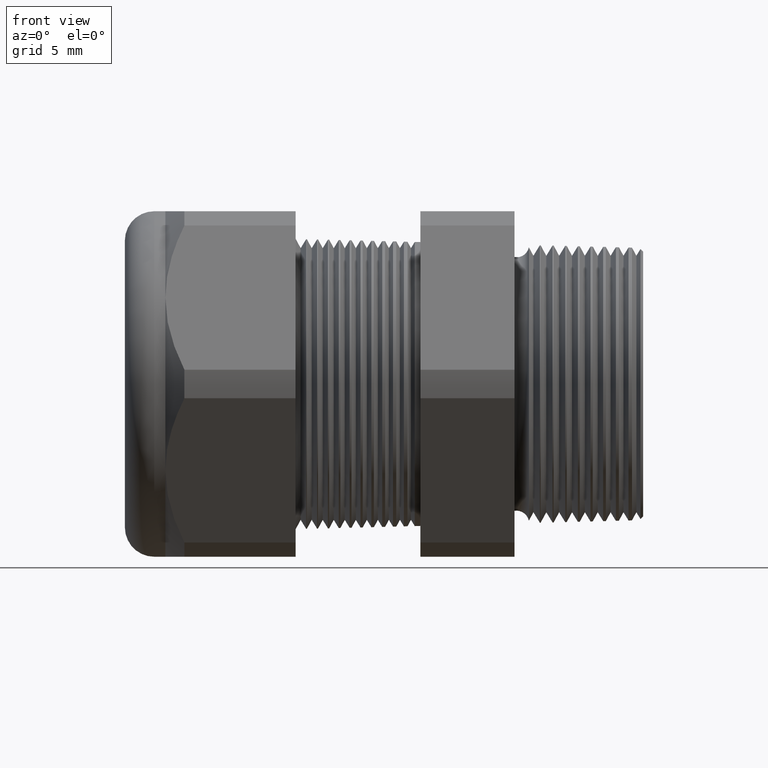
[diagram: clean part render]
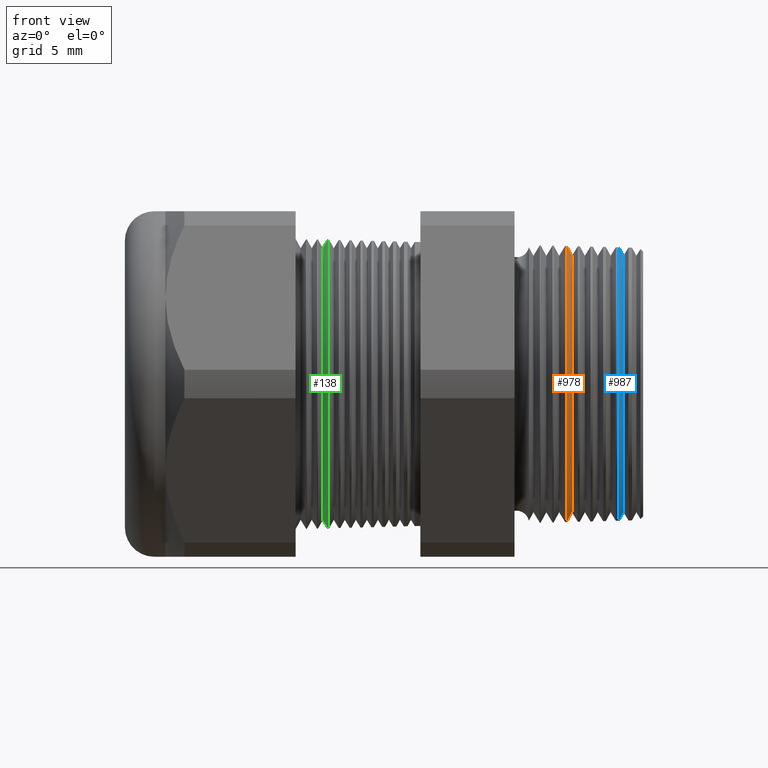
[diagram: same view with three faces highlighted in distinct colors, each labeled with its STEP entity id]
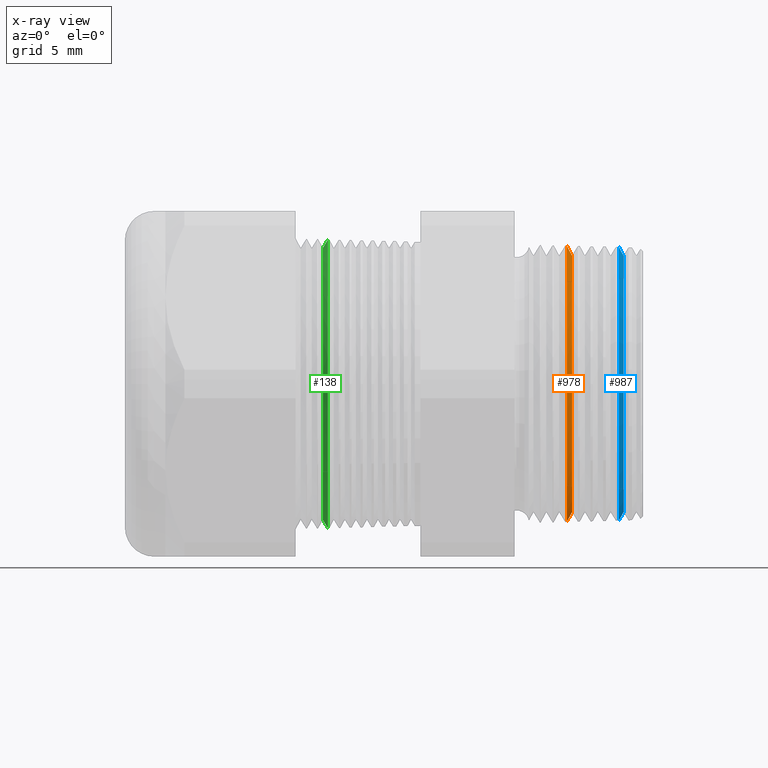
[diagram: x-ray of the same camera — body ghosted, the three highlighted faces saturated]
A machine part, front view with three faces highlighted in distinct colors.
The next image is the same camera in x-ray (body ghosted, the three faces saturated) — at least one of them is partly hidden behind the body in this view.
Their STEP definitions:

[orange] entity #978 — the highlighted conical surface has half-angle 61.5 deg.
#757 = EDGE_CURVE ( 'NONE', #768, #758, #2454, .T. ) ;
#758 = VERTEX_POINT ( 'NONE', #2450 ) ;
#768 = VERTEX_POINT ( 'NONE', #2500 ) ;
#769 = EDGE_CURVE ( 'NONE', #825, #817, #2499, .T. ) ;
#817 = VERTEX_POINT ( 'NONE', #2584 ) ;
#825 = VERTEX_POINT ( 'NONE', #2632 ) ;
#958 = ORIENTED_EDGE ( 'NONE', *, *, #769, .T. ) ;
#959 = ORIENTED_EDGE ( 'NONE', *, *, #4502, .T. ) ;
#978 = ADVANCED_FACE ( 'NONE', ( #2817 ), #2816, .T. ) ;
#979 = EDGE_LOOP ( 'NONE', ( #980, #981, #958, #959 ) ) ;
#980 = ORIENTED_EDGE ( 'NONE', *, *, #757, .F. ) ;
#981 = ORIENTED_EDGE ( 'NONE', *, *, #982, .F. ) ;
#982 = EDGE_CURVE ( 'NONE', #825, #768, #2811, .T. ) ;
#2450 = CARTESIAN_POINT ( 'NONE',  ( -0.1679808000774191100, 4.601514061233293400E-017, -0.3756891326761130400 ) ) ;
#2451 = DIRECTION ( 'NONE',  ( -0.4771587602596179000, 1.076240564057388100E-016, -0.8788171126619600500 ) ) ;
#2452 = VECTOR ( 'NONE', #2451, 39.37007874015748900 ) ;
#2453 = CARTESIAN_POINT ( 'NONE',  ( -0.1699999999999999600, 4.646408372336645900E-017, -0.3794080363066033600 ) ) ;
#2454 = LINE ( 'NONE', #2453, #2452 ) ;
#2496 = DIRECTION ( 'NONE',  ( -0.4771587602596179000, 0.0000000000000000000, 0.8788171126619600500 ) ) ;
#2497 = VECTOR ( 'NONE', #2496, 39.37007874015748900 ) ;
#2498 = CARTESIAN_POINT ( 'NONE',  ( -0.1699999999999999600, 0.0000000000000000000, 0.3794080363066033600 ) ) ;
#2499 = LINE ( 'NONE', #2498, #2497 ) ;
#2500 = CARTESIAN_POINT ( 'NONE',  ( -0.1534707356790752100, 4.437226321388159300E-017, -0.3489649185127733400 ) ) ;
#2584 = CARTESIAN_POINT ( 'NONE',  ( -0.1679808000774191100, 0.0000000000000000000, 0.3756891326761130400 ) ) ;
#2632 = CARTESIAN_POINT ( 'NONE',  ( -0.1534707356790752100, 0.0000000000000000000, 0.3489649185127733400 ) ) ;
#2808 = DIRECTION ( 'NONE',  ( 0.0000000000000000000, 0.0000000000000000000, -1.000000000000000000 ) ) ;
#2809 = DIRECTION ( 'NONE',  ( 1.000000000000000000, 0.0000000000000000000, 0.0000000000000000000 ) ) ;
#2810 = AXIS2_PLACEMENT_3D ( 'NONE', #2815, #2809, #2808 ) ;
#2811 = CIRCLE ( 'NONE', #2810, 0.3489649185127733400 ) ;
#2812 = DIRECTION ( 'NONE',  ( 0.0000000000000000000, 0.0000000000000000000, 1.000000000000000000 ) ) ;
#2813 = DIRECTION ( 'NONE',  ( -1.000000000000000000, 0.0000000000000000000, 0.0000000000000000000 ) ) ;
#2814 = AXIS2_PLACEMENT_3D ( 'NONE', #2821, #2813, #2812 ) ;
#2815 = CARTESIAN_POINT ( 'NONE',  ( -0.1534707356790752100, 0.0000000000000000000, 0.0000000000000000000 ) ) ;
#2816 = CONICAL_SURFACE ( 'NONE', #2814, 0.3794080363066033600, 1.073377489976501800 ) ;
#2817 = FACE_OUTER_BOUND ( 'NONE', #979, .T. ) ;
#2821 = CARTESIAN_POINT ( 'NONE',  ( -0.1699999999999999600, 0.0000000000000000000, 0.0000000000000000000 ) ) ;
#3544 = DIRECTION ( 'NONE',  ( 0.0000000000000000000, 0.0000000000000000000, 1.000000000000000000 ) ) ;
#3545 = DIRECTION ( 'NONE',  ( 1.000000000000000000, 0.0000000000000000000, 0.0000000000000000000 ) ) ;
#3546 = CARTESIAN_POINT ( 'NONE',  ( -0.1679808000774191100, 0.0000000000000000000, 0.0000000000000000000 ) ) ;
#3547 = AXIS2_PLACEMENT_3D ( 'NONE', #3546, #3545, #3544 ) ;
#3548 = CIRCLE ( 'NONE', #3547, 0.3756891326761130400 ) ;
#4502 = EDGE_CURVE ( 'NONE', #817, #758, #3548, .T. ) ;

[blue] entity #987 — the highlighted conical surface has half-angle 61.5 deg.
#987 = ADVANCED_FACE ( 'NONE', ( #2805 ), #2804, .T. ) ;
#988 = EDGE_LOOP ( 'NONE', ( #989, #990, #992, #993 ) ) ;
#989 = ORIENTED_EDGE ( 'NONE', *, *, #1166, .F. ) ;
#990 = ORIENTED_EDGE ( 'NONE', *, *, #991, .F. ) ;
#991 = EDGE_CURVE ( 'NONE', #1104, #1108, #2862, .T. ) ;
#992 = ORIENTED_EDGE ( 'NONE', *, *, #1027, .T. ) ;
#993 = ORIENTED_EDGE ( 'NONE', *, *, #4459, .T. ) ;
#1027 = EDGE_CURVE ( 'NONE', #1104, #1043, #2876, .T. ) ;
#1043 = VERTEX_POINT ( 'NONE', #2907 ) ;
#1104 = VERTEX_POINT ( 'NONE', #3046 ) ;
#1108 = VERTEX_POINT ( 'NONE', #3034 ) ;
#1166 = EDGE_CURVE ( 'NONE', #1108, #1167, #3093, .T. ) ;
#1167 = VERTEX_POINT ( 'NONE', #3083 ) ;
#2804 = CONICAL_SURFACE ( 'NONE', #2863, 0.3794080363066033600, 1.073377489976501800 ) ;
#2805 = FACE_OUTER_BOUND ( 'NONE', #988, .T. ) ;
#2855 = DIRECTION ( 'NONE',  ( 0.0000000000000000000, 0.0000000000000000000, -1.000000000000000000 ) ) ;
#2856 = DIRECTION ( 'NONE',  ( 1.000000000000000000, 0.0000000000000000000, 0.0000000000000000000 ) ) ;
#2857 = CARTESIAN_POINT ( 'NONE',  ( -0.01347073567907519600, 0.0000000000000000000, 0.0000000000000000000 ) ) ;
#2858 = AXIS2_PLACEMENT_3D ( 'NONE', #2857, #2856, #2855 ) ;
#2859 = DIRECTION ( 'NONE',  ( 0.0000000000000000000, 0.0000000000000000000, 1.000000000000000000 ) ) ;
#2860 = DIRECTION ( 'NONE',  ( -1.000000000000000000, 0.0000000000000000000, 0.0000000000000000000 ) ) ;
#2861 = CARTESIAN_POINT ( 'NONE',  ( -0.02999999999999995400, 0.0000000000000000000, 0.0000000000000000000 ) ) ;
#2862 = CIRCLE ( 'NONE', #2858, 0.3489649185127733400 ) ;
#2863 = AXIS2_PLACEMENT_3D ( 'NONE', #2861, #2860, #2859 ) ;
#2873 = DIRECTION ( 'NONE',  ( -0.4771587602596179000, 0.0000000000000000000, 0.8788171126619600500 ) ) ;
#2874 = VECTOR ( 'NONE', #2873, 39.37007874015748900 ) ;
#2875 = CARTESIAN_POINT ( 'NONE',  ( -0.02999999999999995400, 0.0000000000000000000, 0.3794080363066033600 ) ) ;
#2876 = LINE ( 'NONE', #2875, #2874 ) ;
#2907 = CARTESIAN_POINT ( 'NONE',  ( -0.02596160015483819600, 0.0000000000000000000, 0.3719702290456226000 ) ) ;
#3034 = CARTESIAN_POINT ( 'NONE',  ( -0.01347073567907519600, 4.414454604251070700E-017, -0.3489649185127733400 ) ) ;
#3046 = CARTESIAN_POINT ( 'NONE',  ( -0.01347073567907519600, 0.0000000000000000000, 0.3489649185127733400 ) ) ;
#3083 = CARTESIAN_POINT ( 'NONE',  ( -0.02596160015483819600, 4.556648918328038300E-017, -0.3719702290456226000 ) ) ;
#3085 = DIRECTION ( 'NONE',  ( -0.4771587602596179000, 1.076240564057388100E-016, -0.8788171126619600500 ) ) ;
#3086 = VECTOR ( 'NONE', #3085, 39.37007874015748900 ) ;
#3087 = CARTESIAN_POINT ( 'NONE',  ( -0.02999999999999995400, 4.646408372336645900E-017, -0.3794080363066033600 ) ) ;
#3093 = LINE ( 'NONE', #3087, #3086 ) ;
#3446 = DIRECTION ( 'NONE',  ( 0.0000000000000000000, 0.0000000000000000000, 1.000000000000000000 ) ) ;
#3447 = DIRECTION ( 'NONE',  ( 1.000000000000000000, 0.0000000000000000000, 0.0000000000000000000 ) ) ;
#3448 = CARTESIAN_POINT ( 'NONE',  ( -0.02596160015483819600, 0.0000000000000000000, 0.0000000000000000000 ) ) ;
#3449 = AXIS2_PLACEMENT_3D ( 'NONE', #3448, #3447, #3446 ) ;
#3450 = CIRCLE ( 'NONE', #3449, 0.3719702290456226000 ) ;
#4459 = EDGE_CURVE ( 'NONE', #1043, #1167, #3450, .T. ) ;

[green] entity #138 — the highlighted conical surface has half-angle 58.5 deg.
#129 = ORIENTED_EDGE ( 'NONE', *, *, #4610, .T. ) ;
#133 = ORIENTED_EDGE ( 'NONE', *, *, #631, .F. ) ;
#134 = ORIENTED_EDGE ( 'NONE', *, *, #147, .T. ) ;
#135 = ORIENTED_EDGE ( 'NONE', *, *, #637, .T. ) ;
#137 = EDGE_LOOP ( 'NONE', ( #133, #134, #135, #129 ) ) ;
#138 = ADVANCED_FACE ( 'NONE', ( #1371 ), #1428, .T. ) ;
#147 = EDGE_CURVE ( 'NONE', #713, #712, #1408, .T. ) ;
#631 = EDGE_CURVE ( 'NONE', #713, #632, #2258, .T. ) ;
#632 = VERTEX_POINT ( 'NONE', #2249 ) ;
#635 = VERTEX_POINT ( 'NONE', #2243 ) ;
#637 = EDGE_CURVE ( 'NONE', #712, #635, #2242, .T. ) ;
#712 = VERTEX_POINT ( 'NONE', #2353 ) ;
#713 = VERTEX_POINT ( 'NONE', #2352 ) ;
#1371 = FACE_OUTER_BOUND ( 'NONE', #137, .T. ) ;
#1405 = DIRECTION ( 'NONE',  ( 0.0000000000000000000, 0.0000000000000000000, -1.000000000000000000 ) ) ;
#1406 = DIRECTION ( 'NONE',  ( 1.000000000000000000, 0.0000000000000000000, 0.0000000000000000000 ) ) ;
#1407 = AXIS2_PLACEMENT_3D ( 'NONE', #1414, #1406, #1405 ) ;
#1408 = CIRCLE ( 'NONE', #1407, 0.3696307351718083900 ) ;
#1414 = CARTESIAN_POINT ( 'NONE',  ( -0.8316586839320377900, 0.0000000000000000000, 0.0000000000000000000 ) ) ;
#1423 = DIRECTION ( 'NONE',  ( 0.0000000000000000000, 0.0000000000000000000, -1.000000000000000000 ) ) ;
#1424 = DIRECTION ( 'NONE',  ( 1.000000000000000000, 0.0000000000000000000, 0.0000000000000000000 ) ) ;
#1425 = CARTESIAN_POINT ( 'NONE',  ( -0.8316586839320377900, 0.0000000000000000000, 0.0000000000000000000 ) ) ;
#1426 = AXIS2_PLACEMENT_3D ( 'NONE', #1425, #1424, #1423 ) ;
#1428 = CONICAL_SURFACE ( 'NONE', #1426, 0.3696307351718083900, 1.021017612416699200 ) ;
#2239 = DIRECTION ( 'NONE',  ( 0.5224985647159348100, 0.0000000000000000000, -0.8526401643541007300 ) ) ;
#2240 = VECTOR ( 'NONE', #2239, 39.37007874015748900 ) ;
#2241 = CARTESIAN_POINT ( 'NONE',  ( -0.8316586839320377900, 0.0000000000000000000, -0.3696307351718083900 ) ) ;
#2242 = LINE ( 'NONE', #2241, #2240 ) ;
#2243 = CARTESIAN_POINT ( 'NONE',  ( -0.8175230488926574800, 4.809163426811477500E-017, -0.3926979950594575200 ) ) ;
#2249 = CARTESIAN_POINT ( 'NONE',  ( -0.8175230488926574800, 0.0000000000000000000, 0.3926979950594575200 ) ) ;
#2250 = DIRECTION ( 'NONE',  ( 0.5224985647159348100, 1.044183048100722500E-016, 0.8526401643541007300 ) ) ;
#2251 = VECTOR ( 'NONE', #2250, 39.37007874015748900 ) ;
#2252 = CARTESIAN_POINT ( 'NONE',  ( -0.8316586839320377900, 4.526670966946381200E-017, 0.3696307351718083900 ) ) ;
#2258 = LINE ( 'NONE', #2252, #2251 ) ;
#2352 = CARTESIAN_POINT ( 'NONE',  ( -0.8316586839320377900, 0.0000000000000000000, 0.3696307351718083900 ) ) ;
#2353 = CARTESIAN_POINT ( 'NONE',  ( -0.8316586839320377900, 4.672253604444746000E-017, -0.3696307351718083900 ) ) ;
#3767 = DIRECTION ( 'NONE',  ( 0.0000000000000000000, 0.0000000000000000000, -1.000000000000000000 ) ) ;
#3768 = DIRECTION ( 'NONE',  ( -1.000000000000000000, 0.0000000000000000000, 0.0000000000000000000 ) ) ;
#3769 = CARTESIAN_POINT ( 'NONE',  ( -0.8175230488926574800, 0.0000000000000000000, 0.0000000000000000000 ) ) ;
#3770 = AXIS2_PLACEMENT_3D ( 'NONE', #3769, #3768, #3767 ) ;
#3771 = CIRCLE ( 'NONE', #3770, 0.3926979950594574100 ) ;
#4610 = EDGE_CURVE ( 'NONE', #635, #632, #3771, .T. ) ;